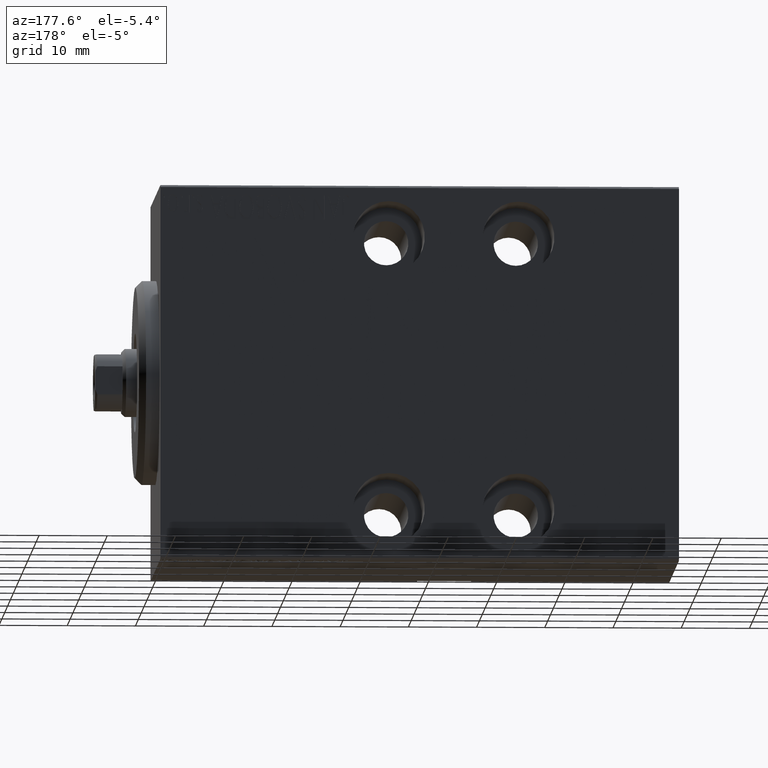
[diagram: clean part render]
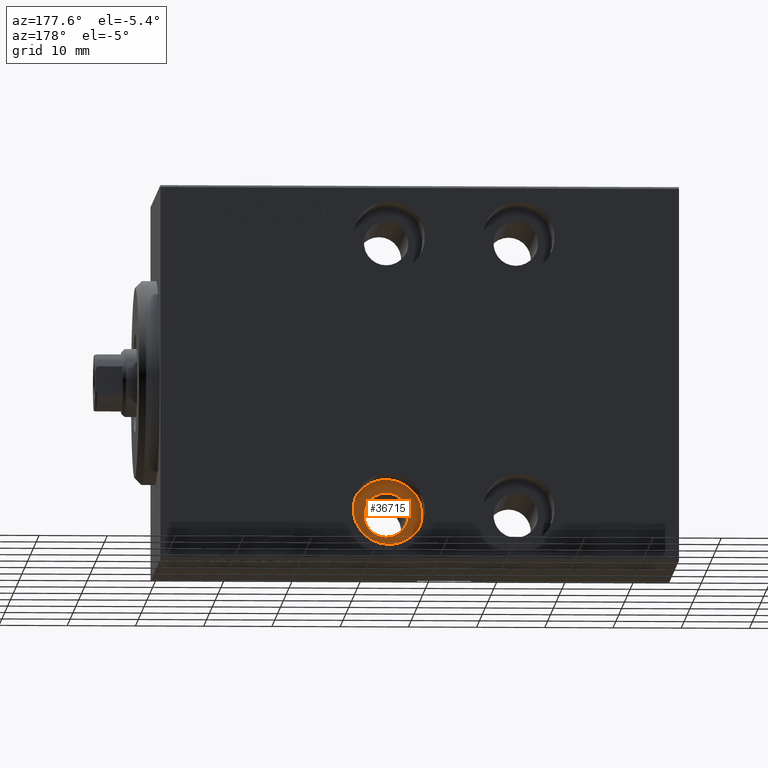
[diagram: same view with one face highlighted and labeled with its STEP entity id]
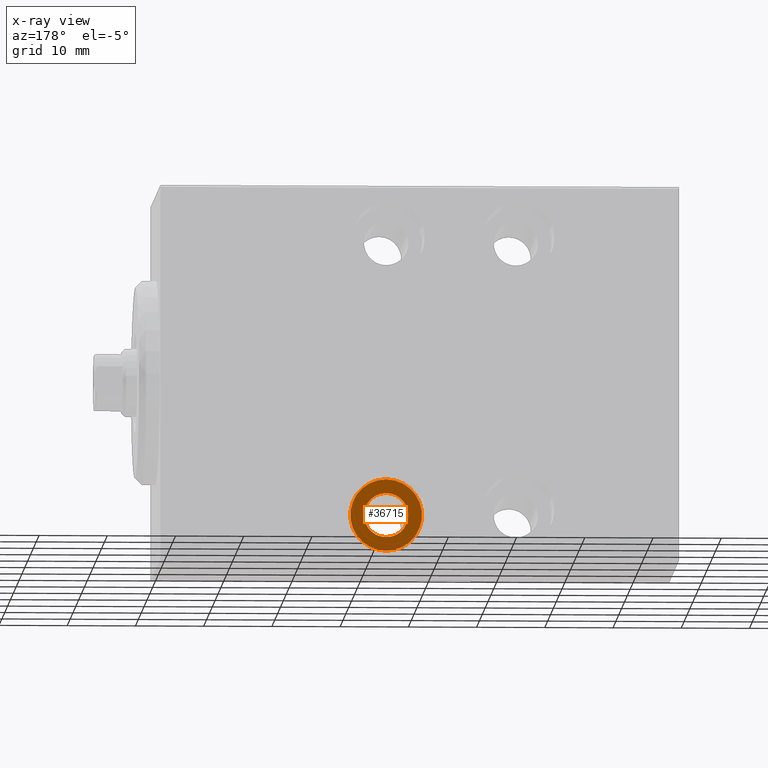
[diagram: x-ray of the same camera — body ghosted, the highlighted face saturated]
A machine part, auxiliary view. The second image highlights one B-rep face of the part: STEP entity #36715.
The next image is the same camera in x-ray: the body ghosted, the highlighted face saturated — about 0% of this face is hidden behind the body in this view.
In plain terms, the highlighted planar face has unit normal (0, 1, 0).
Its self-contained STEP definition (entity closure, byte-faithful):
#1526 = CIRCLE ( 'NONE', #23921, 5.249999999999997335 ) ;
#2068 = CIRCLE ( 'NONE', #38386, 5.249999999999997335 ) ;
#3819 = DIRECTION ( 'NONE',  ( 0.000000000000000000, 0.000000000000000000, -1.000000000000000000 ) ) ;
#3971 = CARTESIAN_POINT ( 'NONE',  ( 33.50000000000000000, -7.499999999999998224, -19.99999999999999645 ) ) ;
#6124 = AXIS2_PLACEMENT_3D ( 'NONE', #39742, #9986, #23102 ) ;
#6760 = DIRECTION ( 'NONE',  ( 0.000000000000000000, -1.000000000000000000, 0.000000000000000000 ) ) ;
#7242 = EDGE_CURVE ( 'NONE', #37111, #29510, #2068, .T. ) ;
#8750 = DIRECTION ( 'NONE',  ( 0.000000000000000000, 0.000000000000000000, -1.000000000000000000 ) ) ;
#8873 = ORIENTED_EDGE ( 'NONE', *, *, #34818, .T. ) ;
#9379 = ORIENTED_EDGE ( 'NONE', *, *, #40566, .T. ) ;
#9722 = ORIENTED_EDGE ( 'NONE', *, *, #14120, .T. ) ;
#9986 = DIRECTION ( 'NONE',  ( -0.000000000000000000, 1.000000000000000000, -0.000000000000000000 ) ) ;
#10748 = FACE_OUTER_BOUND ( 'NONE', #14412, .T. ) ;
#13047 = CARTESIAN_POINT ( 'NONE',  ( 33.50000000000000000, -7.499999999999998224, -14.75000000000000000 ) ) ;
#14120 = EDGE_CURVE ( 'NONE', #29510, #37111, #1526, .T. ) ;
#14412 = EDGE_LOOP ( 'NONE', ( #9722, #19200 ) ) ;
#14463 = DIRECTION ( 'NONE',  ( 0.000000000000000000, -0.000000000000000000, -1.000000000000000000 ) ) ;
#16887 = CIRCLE ( 'NONE', #23186, 3.250000000000002665 ) ;
#17295 = CIRCLE ( 'NONE', #6124, 3.250000000000002665 ) ;
#19200 = ORIENTED_EDGE ( 'NONE', *, *, #7242, .T. ) ;
#20280 = AXIS2_PLACEMENT_3D ( 'NONE', #3971, #37439, #14463 ) ;
#20585 = PLANE ( 'NONE',  #20280 ) ;
#23102 = DIRECTION ( 'NONE',  ( 0.000000000000000000, 0.000000000000000000, -1.000000000000000000 ) ) ;
#23186 = AXIS2_PLACEMENT_3D ( 'NONE', #33775, #23924, #3819 ) ;
#23921 = AXIS2_PLACEMENT_3D ( 'NONE', #35214, #38714, #8750 ) ;
#23924 = DIRECTION ( 'NONE',  ( -0.000000000000000000, 1.000000000000000000, -0.000000000000000000 ) ) ;
#26222 = CARTESIAN_POINT ( 'NONE',  ( 33.50000000000000000, -7.499999999999998224, -19.99999999999999645 ) ) ;
#29510 = VERTEX_POINT ( 'NONE', #31724 ) ;
#31059 = FACE_BOUND ( 'NONE', #40971, .T. ) ;
#31724 = CARTESIAN_POINT ( 'NONE',  ( 33.50000000000000000, -7.499999999999998224, -25.24999999999999289 ) ) ;
#32782 = DIRECTION ( 'NONE',  ( 0.000000000000000000, 0.000000000000000000, -1.000000000000000000 ) ) ;
#33775 = CARTESIAN_POINT ( 'NONE',  ( 33.50000000000000000, -7.499999999999998224, -19.99999999999999645 ) ) ;
#34818 = EDGE_CURVE ( 'NONE', #36081, #36409, #17295, .T. ) ;
#35214 = CARTESIAN_POINT ( 'NONE',  ( 33.50000000000000000, -7.499999999999998224, -19.99999999999999645 ) ) ;
#36081 = VERTEX_POINT ( 'NONE', #36252 ) ;
#36252 = CARTESIAN_POINT ( 'NONE',  ( 33.50000000000000000, -7.499999999999998224, -23.24999999999999645 ) ) ;
#36409 = VERTEX_POINT ( 'NONE', #39703 ) ;
#36715 = ADVANCED_FACE ( 'NONE', ( #10748, #31059 ), #20585, .T. ) ;
#37111 = VERTEX_POINT ( 'NONE', #13047 ) ;
#37439 = DIRECTION ( 'NONE',  ( 0.000000000000000000, -1.000000000000000000, 0.000000000000000000 ) ) ;
#38386 = AXIS2_PLACEMENT_3D ( 'NONE', #26222, #6760, #32782 ) ;
#38714 = DIRECTION ( 'NONE',  ( 0.000000000000000000, -1.000000000000000000, 0.000000000000000000 ) ) ;
#39703 = CARTESIAN_POINT ( 'NONE',  ( 33.50000000000000000, -7.499999999999998224, -16.74999999999999289 ) ) ;
#39742 = CARTESIAN_POINT ( 'NONE',  ( 33.50000000000000000, -7.499999999999998224, -19.99999999999999645 ) ) ;
#40566 = EDGE_CURVE ( 'NONE', #36409, #36081, #16887, .T. ) ;
#40971 = EDGE_LOOP ( 'NONE', ( #9379, #8873 ) ) ;